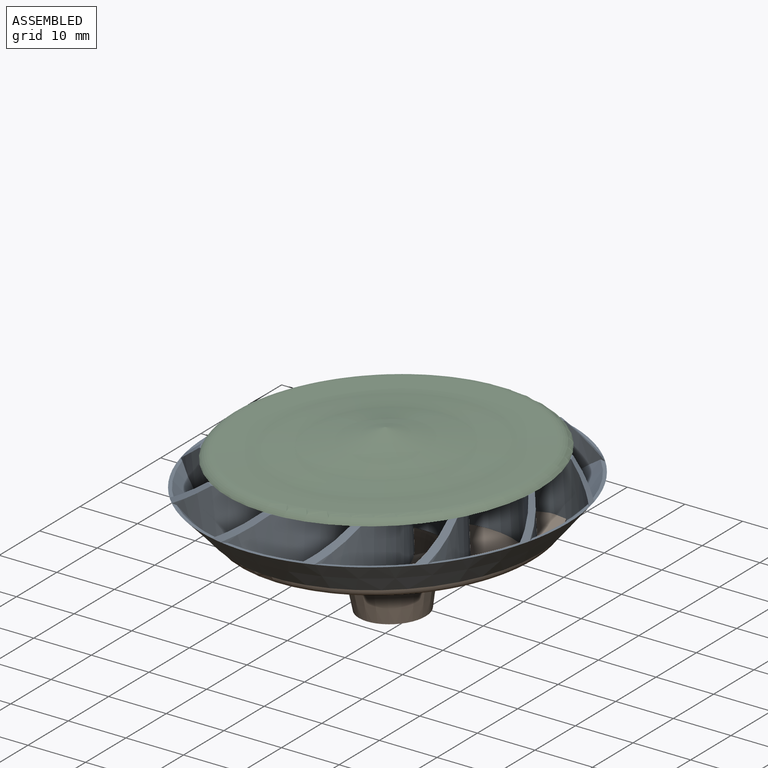
[diagram: assembled view]
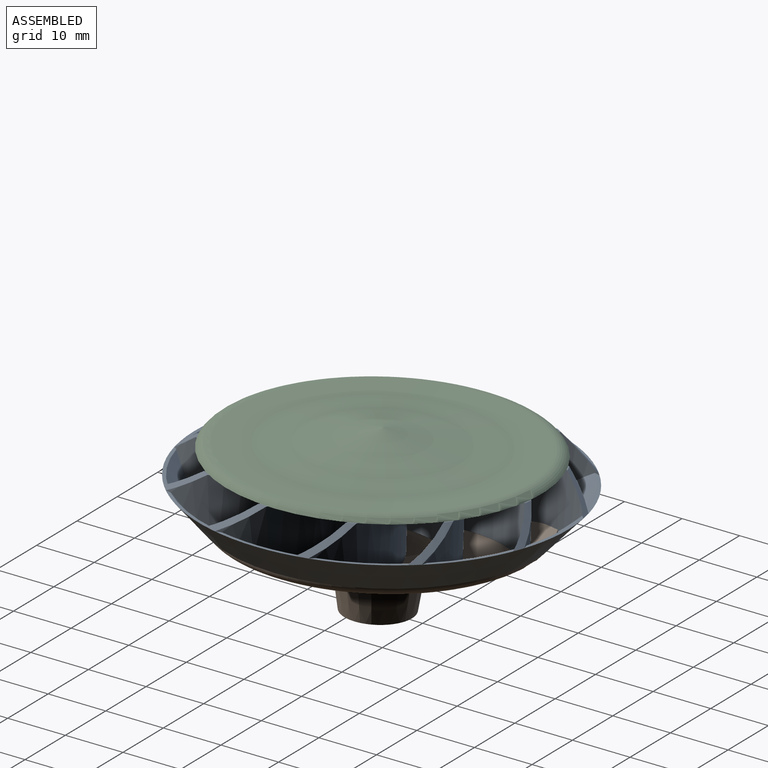
[diagram: assembled view, second angle]
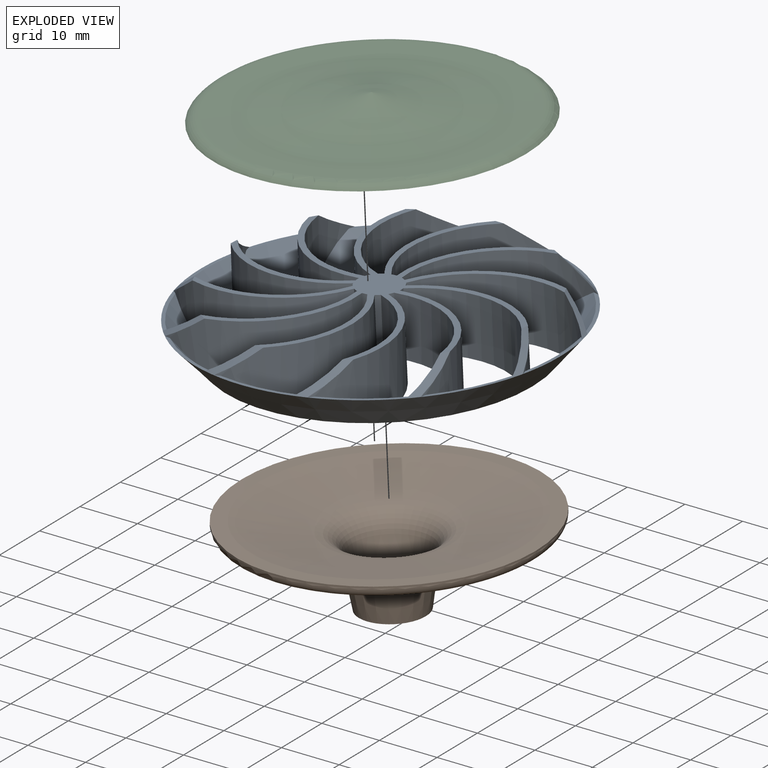
[diagram: exploded view]
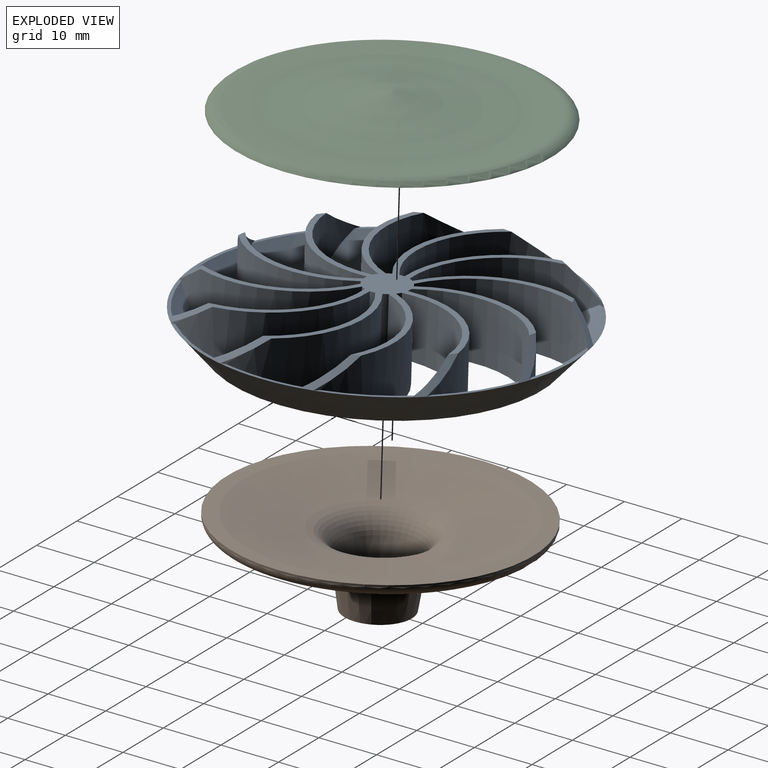
[diagram: exploded view, second angle]
ASSEMBLY  parts=3 mates=2
PART A: 93 faces, bbox 62.5x62.5x14.9 mm
  f0: plane 16.54x13.56mm, normal (0,0,1), area 22.2mm2, adj f13,f14,f62,f91
  f1: plane 19.58x9.11mm, normal (0,0,1), area 22.2mm2, adj f15,f16,f63,f90
  f2: plane 20.38x6.12mm, normal (0,0,1), area 22.2mm2, adj f17,f18,f64,f89
  f3: plane 16.54x13.56mm, normal (0,0,1), area 22.2mm2, adj f19,f20,f65,f88
  f4: plane 19.58x9.11mm, normal (0,0,1), area 22.2mm2, adj f21,f22,f66,f87
  f5: plane 20.38x6.12mm, normal (0,0,1), area 22.2mm2, adj f23,f24,f67,f86
  f6: plane 16.54x13.56mm, normal (0,0,1), area 22.2mm2, adj f25,f26,f68,f85
  f7: plane 19.58x9.11mm, normal (0,0,1), area 22.2mm2, adj f27,f28,f69,f84
  f8: plane 20.38x6.12mm, normal (0,0,1), area 22.2mm2, adj f29,f30,f70,f83
  f9: plane 16.54x13.56mm, normal (0,0,1), area 22.2mm2, adj f31,f32,f71,f82
  f10: plane 19.58x9.11mm, normal (0,0,1), area 22.2mm2, adj f33,f34,f72,f81
  f11: cylinder r=17.38mm len=27.7mm, axis (0,0,-1), area 289.9mm2, adj f35,f47,f48,f60,f61,f73,f76,f77
  f12: cylinder r=16.36mm len=27mm, axis (0,0,-1), area 289.6mm2, adj f35,f47,f49,f60,f61,f73,f76,f77
  f13: cylinder r=17.38mm len=21.57mm, axis (0,0,-1), area 289.9mm2, adj f0,f46,f49,f60,f62,f73,f76,f77
  f14: cylinder r=16.36mm len=21.99mm, axis (0,0,-1), area 289.6mm2, adj f0,f46,f50,f60,f62,f73,f76,f77
  f15: cylinder r=17.38mm len=28.32mm, axis (0,0,-1), area 289.9mm2, adj f1,f45,f50,f60,f63,f73,f76,f77
  f16: cylinder r=16.36mm len=28.09mm, axis (0,0,-1), area 289.6mm2, adj f1,f45,f51,f60,f63,f73,f76,f77
  f17: cylinder r=17.38mm len=27.7mm, axis (0,0,-1), area 289.9mm2, adj f2,f44,f51,f60,f64,f73,f76,f77
  f18: cylinder r=16.36mm len=27mm, axis (0,0,-1), area 289.6mm2, adj f2,f44,f52,f60,f64,f73,f76,f77
  f19: cylinder r=17.38mm len=21.57mm, axis (0,0,-1), area 289.9mm2, adj f3,f43,f52,f60,f65,f73,f76,f77
  f20: cylinder r=16.36mm len=21.99mm, axis (0,0,-1), area 289.6mm2, adj f3,f43,f53,f60,f65,f73,f76,f77
  f21: cylinder r=17.38mm len=28.32mm, axis (0,0,-1), area 289.9mm2, adj f4,f42,f53,f60,f66,f73,f76,f77
  f22: cylinder r=16.36mm len=28.09mm, axis (0,0,-1), area 289.6mm2, adj f4,f42,f54,f60,f66,f73,f76,f77
  f23: cylinder r=17.38mm len=27.7mm, axis (0,0,-1), area 289.9mm2, adj f5,f41,f54,f60,f67,f73,f76,f77
  f24: cylinder r=16.36mm len=27mm, axis (0,0,-1), area 289.6mm2, adj f5,f41,f55,f60,f67,f73,f76,f77
  f25: cylinder r=17.38mm len=21.57mm, axis (0,0,-1), area 289.9mm2, adj f6,f40,f55,f60,f68,f73,f76,f77
  f26: cylinder r=16.36mm len=21.99mm, axis (0,0,-1), area 289.6mm2, adj f6,f40,f56,f60,f68,f73,f76,f77
  f27: cylinder r=17.38mm len=28.32mm, axis (0,0,-1), area 289.9mm2, adj f7,f39,f56,f60,f69,f73,f76,f77
  f28: cylinder r=16.36mm len=28.09mm, axis (0,0,-1), area 289.6mm2, adj f7,f39,f57,f60,f69,f73,f76,f77
  f29: cylinder r=17.38mm len=27.7mm, axis (0,0,-1), area 289.9mm2, adj f8,f38,f57,f60,f70,f73,f76,f77
  f30: cylinder r=16.36mm len=27mm, axis (0,0,-1), area 289.6mm2, adj f8,f38,f58,f60,f70,f73,f76,f77
  f31: cylinder r=17.38mm len=21.57mm, axis (0,0,-1), area 289.9mm2, adj f9,f37,f58,f60,f71,f73,f76,f77
  f32: cylinder r=16.36mm len=21.99mm, axis (0,0,-1), area 289.6mm2, adj f9,f37,f59,f60,f71,f73,f76,f77
  f33: cylinder r=17.38mm len=28.32mm, axis (0,0,-1), area 289.9mm2, adj f10,f36,f59,f60,f72,f73,f76,f77
  f34: cylinder r=16.36mm len=28.09mm, axis (0,0,-1), area 289.6mm2, adj f10,f36,f48,f60,f72,f73,f76,f77
  f35: plane 20.38x6.12mm, normal (0,0,1), area 22.2mm2, adj f11,f12,f61,f80
  f36: cone r=26.84mm half-angle=45deg, axis (0,0,1), area 10.7mm2, adj f33,f34,f60,f76
  f37: cone r=26.84mm half-angle=45deg, axis (0,0,1), area 10.7mm2, adj f31,f32,f60,f76
  f38: cone r=26.84mm half-angle=45deg, axis (0,0,1), area 10.7mm2, adj f29,f30,f60,f76
  f39: cone r=26.84mm half-angle=45deg, axis (0,0,1), area 10.7mm2, adj f27,f28,f60,f76
  f40: cone r=26.84mm half-angle=45deg, axis (0,0,1), area 10.7mm2, adj f25,f26,f60,f76
  f41: cone r=26.84mm half-angle=45deg, axis (0,0,1), area 10.7mm2, adj f23,f24,f60,f76
  f42: cone r=26.84mm half-angle=45deg, axis (0,0,1), area 10.7mm2, adj f21,f22,f60,f76
  f43: cone r=26.84mm half-angle=45deg, axis (0,0,1), area 10.7mm2, adj f19,f20,f60,f76
  f44: cone r=26.84mm half-angle=45deg, axis (0,0,1), area 10.7mm2, adj f17,f18,f60,f76
  f45: cone r=26.84mm half-angle=45deg, axis (0,0,1), area 10.7mm2, adj f15,f16,f60,f76
  f46: cone r=26.84mm half-angle=45deg, axis (0,0,1), area 10.7mm2, adj f13,f14,f60,f76
  f47: cone r=26.84mm half-angle=45deg, axis (0,0,1), area 10.7mm2, adj f11,f12,f60,f76
  f48: cylinder r=3.81mm len=10.16mm, axis (0,0,-1), area 9.3mm2, adj f11,f34,f60,f77
  f49: cylinder r=3.81mm len=10.16mm, axis (0,0,-1), area 9.3mm2, adj f12,f13,f60,f78
  f50: cylinder r=3.81mm len=10.16mm, axis (0,0,-1), area 9.3mm2, adj f14,f15,f60,f77
  f51: cylinder r=3.81mm len=10.16mm, axis (0,0,-1), area 9.3mm2, adj f16,f17,f60,f77
  f52: cylinder r=3.81mm len=10.16mm, axis (0,0,-1), area 9.3mm2, adj f18,f19,f60,f77
  f53: cylinder r=3.81mm len=10.16mm, axis (0,0,-1), area 9.3mm2, adj f20,f21,f60,f77
  f54: cylinder r=3.81mm len=10.16mm, axis (0,0,-1), area 9.3mm2, adj f22,f23,f60,f77
  f55: cylinder r=3.81mm len=10.16mm, axis (0,0,-1), area 9.3mm2, adj f24,f25,f60,f77
  f56: cylinder r=3.81mm len=10.16mm, axis (0,0,-1), area 9.3mm2, adj f26,f27,f60,f77
  f57: cylinder r=3.81mm len=10.16mm, axis (0,0,-1), area 9.3mm2, adj f28,f29,f60,f77
  f58: cylinder r=3.81mm len=10.16mm, axis (0,0,-1), area 9.3mm2, adj f30,f31,f60,f77
  f59: cylinder r=3.81mm len=10.16mm, axis (0,0,-1), area 9.3mm2, adj f32,f33,f60,f77
  f60: plane 53.61x53.61mm, normal (0,0,-1), area 359.8mm2, adj f11,f12,f13,f14,f15,f16,f17,f18
  f61: cone r=24.96mm half-angle=45deg, axis (0,0,-1), area 2mm2, adj f11,f12,f35,f73
  f62: cone r=24.96mm half-angle=45deg, axis (0,0,-1), area 2mm2, adj f0,f13,f14,f73
  f63: cone r=24.96mm half-angle=45deg, axis (0,0,-1), area 2mm2, adj f1,f15,f16,f73
  f64: cone r=24.96mm half-angle=45deg, axis (0,0,-1), area 2mm2, adj f2,f17,f18,f73
  f65: cone r=24.96mm half-angle=45deg, axis (0,0,-1), area 2mm2, adj f3,f19,f20,f73
  f66: cone r=24.96mm half-angle=45deg, axis (0,0,-1), area 2mm2, adj f4,f21,f22,f73
  f67: cone r=24.96mm half-angle=45deg, axis (0,0,-1), area 2mm2, adj f5,f23,f24,f73
  f68: cone r=24.96mm half-angle=45deg, axis (0,0,-1), area 2mm2, adj f6,f25,f26,f73
  f69: cone r=24.96mm half-angle=45deg, axis (0,0,-1), area 2mm2, adj f7,f27,f28,f73
  f70: cone r=24.96mm half-angle=45deg, axis (0,0,-1), area 2mm2, adj f8,f29,f30,f73
  f71: cone r=24.96mm half-angle=45deg, axis (0,0,-1), area 2mm2, adj f9,f31,f32,f73
  f72: cone r=24.96mm half-angle=45deg, axis (0,0,-1), area 2mm2, adj f10,f33,f34,f73
  f73: cone r=25.54mm half-angle=41.5deg, axis (0,0,-1), area 1238.6mm2, adj f11,f12,f13,f14,f15,f16,f17,f18
  f74: plane 52.2x52.2mm, normal (0,0,1), area 90.6mm2, adj f73,f75
  f75: cone r=31.23mm half-angle=41.5deg, axis (0,0,-1), area 1393.8mm2, adj f74,f76
  f76: plane 62.46x62.46mm, normal (0,0,-1), area 95.6mm2, adj f11,f12,f13,f14,f15,f16,f17,f18
  f77: cone r=3.81mm half-angle=38deg, axis (0,0,-1), area 47.7mm2, adj f11,f12,f13,f14,f15,f16,f17,f18
  f78: cone r=3.81mm half-angle=38deg, axis (0,0,-1), area 0.7mm2, adj f12,f49,f77
  f79: plane 0.07x0.07mm, normal (0,0,1), area 0mm2, adj f92
  f80: torus R=5.67mm, axis (0,0,1), area 3.8mm2, adj f11,f12,f35,f77
  f81: torus R=5.67mm, axis (0,0,1), area 3.8mm2, adj f10,f33,f34,f77
  f82: torus R=5.67mm, axis (0,0,1), area 3.8mm2, adj f9,f31,f32,f77
  f83: torus R=5.67mm, axis (0,0,1), area 3.8mm2, adj f8,f29,f30,f77
  f84: torus R=5.67mm, axis (0,0,1), area 3.8mm2, adj f7,f27,f28,f77
  f85: torus R=5.67mm, axis (0,0,1), area 3.8mm2, adj f6,f25,f26,f77
  f86: torus R=5.67mm, axis (0,0,1), area 3.8mm2, adj f5,f23,f24,f77
  f87: torus R=5.67mm, axis (0,0,1), area 3.8mm2, adj f4,f21,f22,f77
  f88: torus R=5.67mm, axis (0,0,1), area 3.8mm2, adj f3,f19,f20,f77
  f89: torus R=5.67mm, axis (0,0,1), area 3.8mm2, adj f2,f17,f18,f77
  f90: torus R=5.67mm, axis (0,0,1), area 3.8mm2, adj f1,f15,f16,f77
  f91: torus R=5.67mm, axis (0,0,1), area 3.8mm2, adj f0,f13,f14,f77
  f92: torus R=0.03mm, axis (0,0,1), area 0.1mm2, adj f77,f79
PART B: 11 faces, bbox 57.2x57.2x14.5 mm
  f0: plane 45.6x45.6mm, normal (0,0,1), area 1051.9mm2, adj f4,f9
  f1: plane 51.05x51.05mm, normal (0,0,-1), area 391mm2, adj f6,f8
  f2: cone r=7.95mm half-angle=10deg, axis (0,0,-1), area 288.4mm2, adj f3,f4
  f3: plane 11.42x11.42mm, normal (0,0,1), area 42.1mm2, adj f2,f5
  f4: torus R=13.6mm, axis (0,0,1), area 568.2mm2, adj f0,f2
  f5: cone r=8.26mm half-angle=15deg, axis (0,0,-1), area 310.9mm2, adj f3,f10
  f6: cylinder r=25.53mm len=51.05mm, axis (0,0,-1), area 49.1mm2, adj f1,f7
  f7: torus R=23.93mm, axis (0,0,1), area 393.6mm2, adj f6,f9
  f8: cone r=22.96mm half-angle=80deg, axis (0,0,-1), area 1315.2mm2, adj f1,f10
  f9: torus R=22.8mm, axis (0,0,-1), area 167.1mm2, adj f0,f7
  f10: torus R=11.6mm, axis (0,0,1), area 302.4mm2, adj f5,f8
PART C: 3 faces, bbox 58.8x58.8x5.3 mm
  f0: plane 53.34x53.34mm, normal (0,0,1), area 2234.6mm2, adj f2
  f1: torus R=20.47mm, axis (0,0,1), area 1892.1mm2, adj f2
  f2: torus R=24.62mm, axis (0,0,1), area 406.5mm2, adj f0,f1
PLACE A rot(axis=(0,1,0),177.3deg) t=(-10.49,-3.32,-21.64)mm
PLACE B rot(axis=(0,1,0),177.3deg) t=(-10.03,-3.32,-31.47)mm
PLACE C rot(axis=(1,0,0.02),180deg) t=(-10.49,-3.32,-21.64)mm
MATE fastened C.f1 <-> A.f49  axis (0.05,0,-1) through (-10.49,-3.32,-21.64)mm
MATE fastened A.f48 <-> B.f2  axis (0.05,0,-1) through (-9.95,-3.32,-33.25)mm
